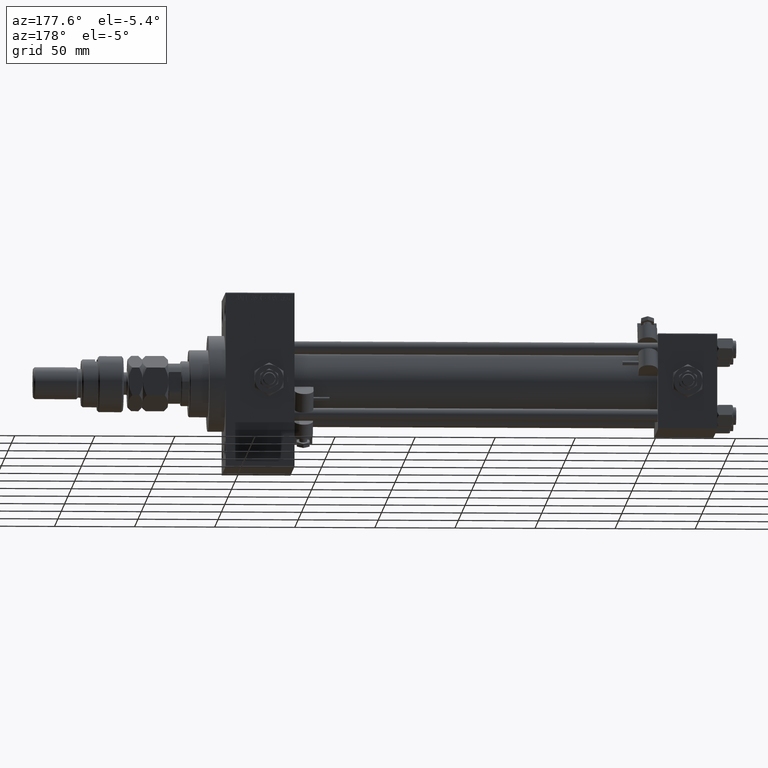
[diagram: clean part render]
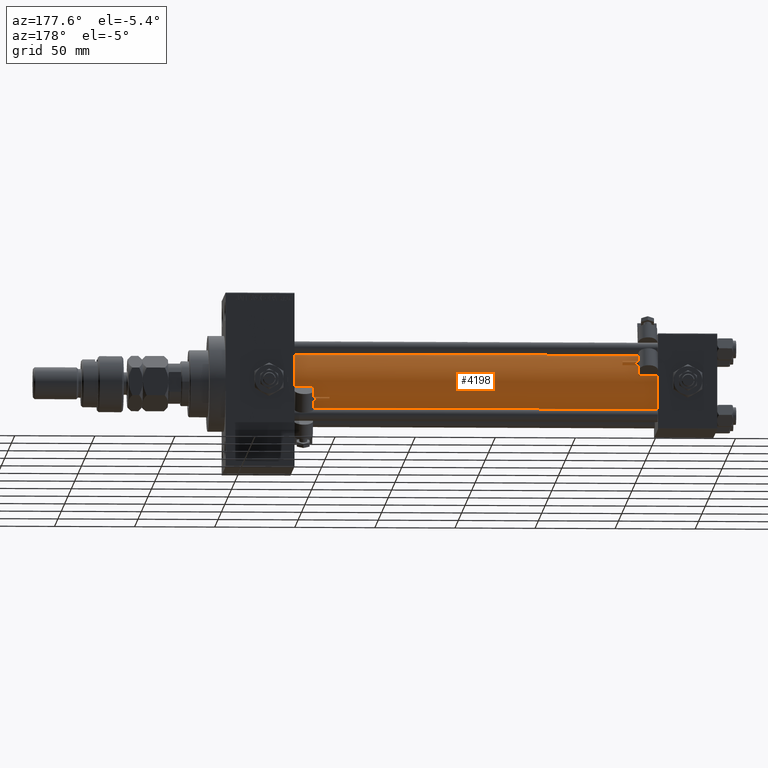
[diagram: same view with one face highlighted and labeled with its STEP entity id]
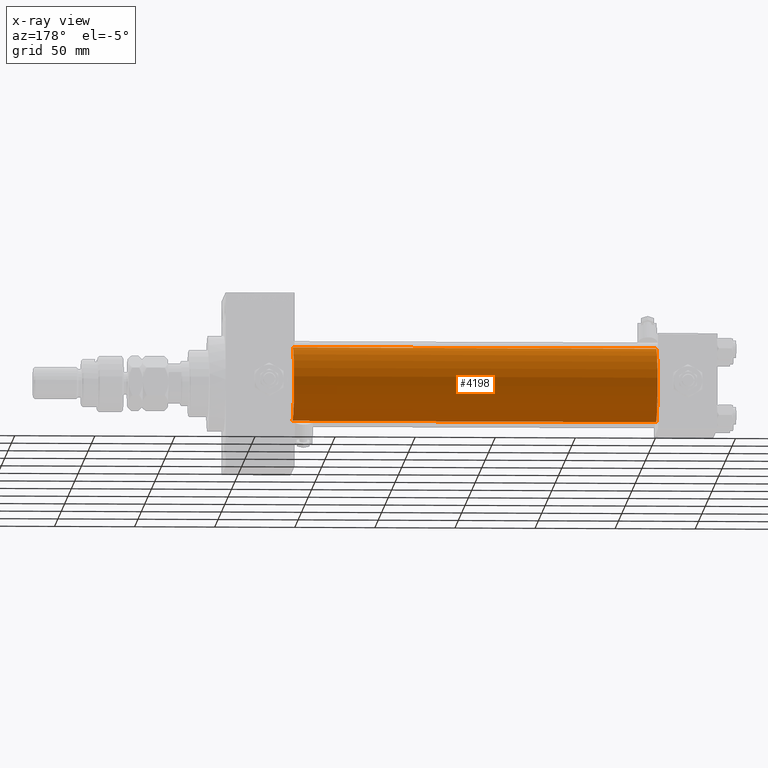
[diagram: x-ray of the same camera — body ghosted, the highlighted face saturated]
A machine part, auxiliary view. The second image highlights one B-rep face of the part: STEP entity #4198.
The next image is the same camera in x-ray: the body ghosted, the highlighted face saturated — about 0% of this face is hidden behind the body in this view.
In plain terms, the highlighted cylindrical surface (partial cylindrical patch) has radius 23 mm, axis along (-1, -0, -0).
Its self-contained STEP definition (entity closure, byte-faithful):
#1420 = CARTESIAN_POINT ( 'NONE',  ( 37.00000000000000711, -2.602085213965210642E-15, 0.000000000000000000 ) ) ;
#2338 = DIRECTION ( 'NONE',  ( -1.000000000000000000, -0.000000000000000000, -0.000000000000000000 ) ) ;
#2536 = EDGE_LOOP ( 'NONE', ( #32555, #19204, #6422, #18733 ) ) ;
#2863 = AXIS2_PLACEMENT_3D ( 'NONE', #1420, #34232, #5452 ) ;
#4198 = ADVANCED_FACE ( 'NONE', ( #35973 ), #48080, .T. ) ;
#5452 = DIRECTION ( 'NONE',  ( 0.000000000000000000, 0.000000000000000000, 1.000000000000000000 ) ) ;
#6422 = ORIENTED_EDGE ( 'NONE', *, *, #32317, .T. ) ;
#6752 = DIRECTION ( 'NONE',  ( -1.000000000000000000, -0.000000000000000000, -0.000000000000000000 ) ) ;
#7173 = DIRECTION ( 'NONE',  ( 1.000000000000000000, 0.000000000000000000, 0.000000000000000000 ) ) ;
#7455 = CARTESIAN_POINT ( 'NONE',  ( 264.0000000000000000, -2.602085213965210642E-15, 0.000000000000000000 ) ) ;
#8204 = CARTESIAN_POINT ( 'NONE',  ( 264.0000000000000000, 2.146024240737012665E-16, -23.00000000000000000 ) ) ;
#10063 = CIRCLE ( 'NONE', #50405, 23.00000000000000000 ) ;
#10134 = VECTOR ( 'NONE', #6752, 1000.000000000000000 ) ;
#12160 = VERTEX_POINT ( 'NONE', #8204 ) ;
#14313 = VECTOR ( 'NONE', #41074, 1000.000000000000000 ) ;
#16194 = CARTESIAN_POINT ( 'NONE',  ( 37.00000000000000711, 2.146024240737012665E-16, -23.00000000000000000 ) ) ;
#16856 = EDGE_CURVE ( 'NONE', #12160, #22945, #10063, .T. ) ;
#17789 = EDGE_CURVE ( 'NONE', #22945, #39665, #44851, .T. ) ;
#18733 = ORIENTED_EDGE ( 'NONE', *, *, #17789, .F. ) ;
#19204 = ORIENTED_EDGE ( 'NONE', *, *, #19704, .T. ) ;
#19704 = EDGE_CURVE ( 'NONE', #12160, #47672, #52724, .T. ) ;
#22945 = VERTEX_POINT ( 'NONE', #23858 ) ;
#23858 = CARTESIAN_POINT ( 'NONE',  ( 264.0000000000000000, -2.602085213965210642E-15, 23.00000000000000000 ) ) ;
#23965 = CARTESIAN_POINT ( 'NONE',  ( 264.0000000000000000, 2.146024240737012665E-16, -23.00000000000000000 ) ) ;
#27626 = DIRECTION ( 'NONE',  ( 0.000000000000000000, 0.000000000000000000, 1.000000000000000000 ) ) ;
#28567 = AXIS2_PLACEMENT_3D ( 'NONE', #7455, #2338, #27626 ) ;
#30346 = CIRCLE ( 'NONE', #2863, 23.00000000000000000 ) ;
#32317 = EDGE_CURVE ( 'NONE', #47672, #39665, #30346, .T. ) ;
#32555 = ORIENTED_EDGE ( 'NONE', *, *, #16856, .F. ) ;
#34232 = DIRECTION ( 'NONE',  ( 1.000000000000000000, -0.000000000000000000, 0.000000000000000000 ) ) ;
#35973 = FACE_OUTER_BOUND ( 'NONE', #2536, .T. ) ;
#39665 = VERTEX_POINT ( 'NONE', #47217 ) ;
#41074 = DIRECTION ( 'NONE',  ( -1.000000000000000000, -0.000000000000000000, -0.000000000000000000 ) ) ;
#44851 = LINE ( 'NONE', #48092, #14313 ) ;
#45087 = DIRECTION ( 'NONE',  ( 0.000000000000000000, 0.000000000000000000, -1.000000000000000000 ) ) ;
#47217 = CARTESIAN_POINT ( 'NONE',  ( 37.00000000000000711, -2.602085213965210642E-15, 23.00000000000000000 ) ) ;
#47672 = VERTEX_POINT ( 'NONE', #16194 ) ;
#48080 = CYLINDRICAL_SURFACE ( 'NONE', #28567, 23.00000000000000000 ) ;
#48092 = CARTESIAN_POINT ( 'NONE',  ( 264.0000000000000000, -2.602085213965210642E-15, 23.00000000000000000 ) ) ;
#50405 = AXIS2_PLACEMENT_3D ( 'NONE', #52352, #7173, #45087 ) ;
#52352 = CARTESIAN_POINT ( 'NONE',  ( 264.0000000000000000, -2.602085213965210642E-15, 0.000000000000000000 ) ) ;
#52724 = LINE ( 'NONE', #23965, #10134 ) ;